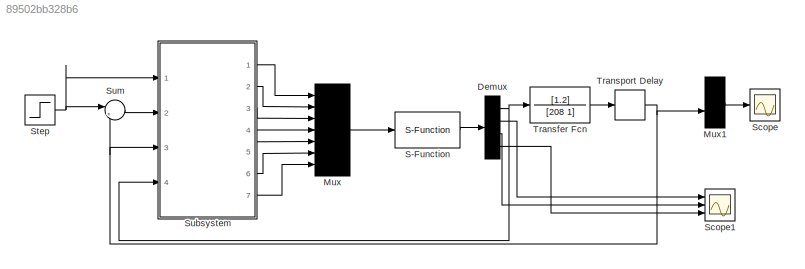
MODEL slx_89502bb328b6
KIND model
CONFIG AbsTol = auto
CONFIG FixedStep = 0.001
CONFIG MaxStep = auto
CONFIG MinStep = auto
CONFIG RelTol = 1e-3
CONFIG SampleTimeConstraint = Unconstrained
CONFIG Solver = ode4
CONFIG SolverMode = Auto
CONFIG SolverName = ode4
CONFIG StartTime = 0.0
CONFIG StopTime = 100
BLOCK [Demux] Demux
  DisplayOption = bar
  Ports = [1, 4]
BLOCK [Mux] Mux
  Inputs = 7
  Ports = [7, 1]
BLOCK [Mux] Mux1
  Inputs = 2
  Ports = [2, 1]
BLOCK [S-Function] S-Function
  FunctionName = sfun
  Ports = [1, 1]
BLOCK [Scope] Scope
  Floating = off
  NumInputPorts = 1
  Ports = [1]
BLOCK [Scope] Scope1
  Floating = off
  NumInputPorts = 3
  Ports = [3]
  SaveName = ScopeData1
  YMax = 5~5~5
  YMin = -5~-5~-5
BLOCK [Step] Step
  SampleTime = 0
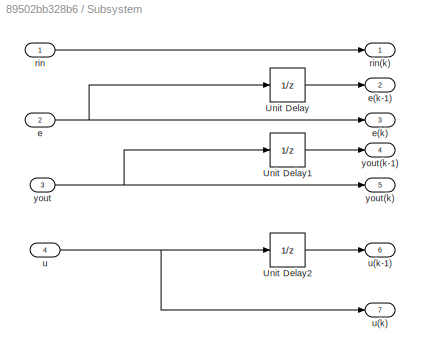
BLOCK [SubSystem] Subsystem
  Ports = [4, 7]
  RequestExecContextInheritance = off
BLOCK [UnitDelay] Subsystem/Unit Delay
  InputProcessing = Elements as channels (sample based)
  SampleTime = -1
BLOCK [UnitDelay] Subsystem/Unit Delay1
  InputProcessing = Elements as channels (sample based)
  SampleTime = -1
BLOCK [UnitDelay] Subsystem/Unit Delay2
  InputProcessing = Elements as channels (sample based)
  SampleTime = -1
BLOCK [Inport] Subsystem/e
  IconDisplay = Port number
  Port = 2
BLOCK [Outport] Subsystem/e(k)
  IconDisplay = Port number
  Port = 3
BLOCK [Outport] Subsystem/e(k-1)
  IconDisplay = Port number
  Port = 2
BLOCK [Inport] Subsystem/rin
  IconDisplay = Port number
BLOCK [Outport] Subsystem/rin(k)
  IconDisplay = Port number
BLOCK [Inport] Subsystem/u
  IconDisplay = Port number
  Port = 4
BLOCK [Outport] Subsystem/u(k)
  IconDisplay = Port number
  Port = 7
BLOCK [Outport] Subsystem/u(k-1)
  IconDisplay = Port number
  Port = 6
BLOCK [Inport] Subsystem/yout
  IconDisplay = Port number
  Port = 3
BLOCK [Outport] Subsystem/yout(k)
  IconDisplay = Port number
  Port = 5
BLOCK [Outport] Subsystem/yout(k-1)
  IconDisplay = Port number
  Port = 4
BLOCK [Sum] Sum
  IconShape = round
  InputSameDT = off
  Inputs = |+-
  OutDataTypeStr = Inherit: Inherit via internal rule
  Ports = [2, 1]
  SaturateOnIntegerOverflow = off
BLOCK [TransferFcn] Transfer Fcn
  Denominator = [208 1]
  Numerator = [1.2]
BLOCK [TransportDelay] Transport Delay
  DelayTime = 0
  Ports = [1, 1]
NET Demux:1 -> Subsystem:4, Transfer Fcn:1
LINE Demux:2 -> Scope1:1
LINE Demux:3 -> Scope1:2
LINE Demux:4 -> Scope1:3
LINE Mux1:1 -> Scope:1
LINE Mux:1 -> S-Function:1
LINE S-Function:1 -> Demux:1
NET Step:1 -> Subsystem:1, Sum:1
LINE Subsystem/Unit Delay1:1 -> Subsystem/yout(k-1):1
LINE Subsystem/Unit Delay2:1 -> Subsystem/u(k-1):1
LINE Subsystem/Unit Delay:1 -> Subsystem/e(k-1):1
NET Subsystem/e:1 -> Subsystem/Unit Delay:1, Subsystem/e(k):1
LINE Subsystem/rin:1 -> Subsystem/rin(k):1
NET Subsystem/u:1 -> Subsystem/Unit Delay2:1, Subsystem/u(k):1
NET Subsystem/yout:1 -> Subsystem/Unit Delay1:1, Subsystem/yout(k):1
LINE Subsystem:1 -> Mux:1
LINE Subsystem:2 -> Mux:2
LINE Subsystem:3 -> Mux:3
LINE Subsystem:4 -> Mux:4
LINE Subsystem:5 -> Mux:5
LINE Subsystem:6 -> Mux:6
LINE Subsystem:7 -> Mux:7
LINE Sum:1 -> Subsystem:2
LINE Transfer Fcn:1 -> Transport Delay:1
NET Transport Delay:1 -> Mux1:2, Subsystem:3, Sum:2
note: NET lines group one-source signal fan-out (src -> all destinations, sorted); 1:1 wires keep LINE
